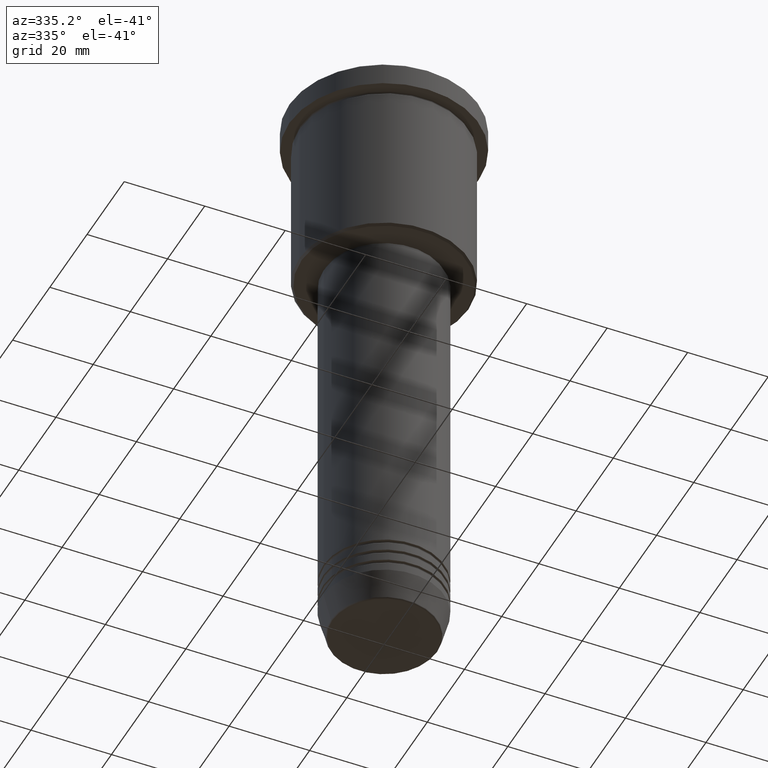
[diagram: clean part render]
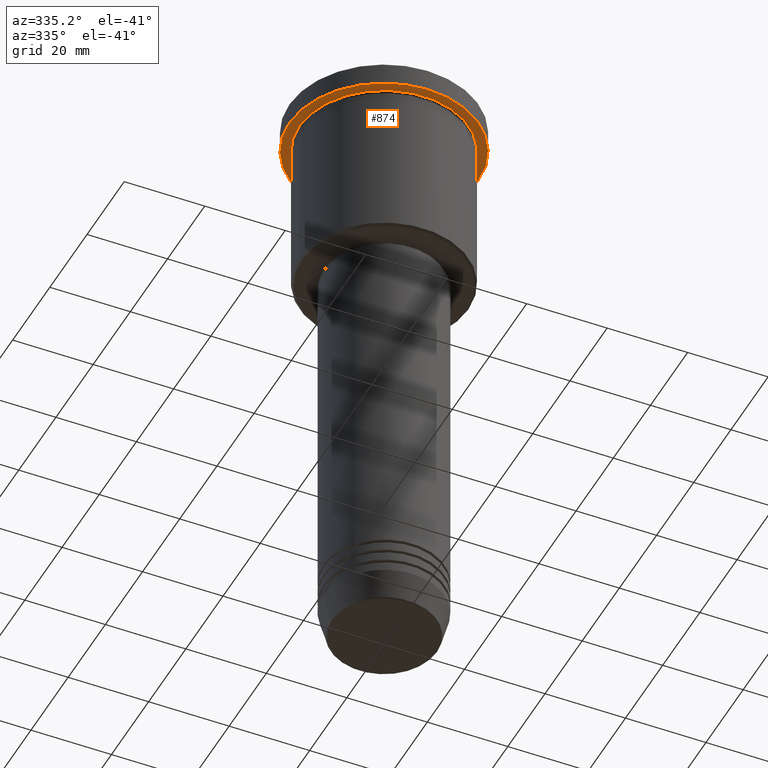
[diagram: same view with one face highlighted and labeled with its STEP entity id]
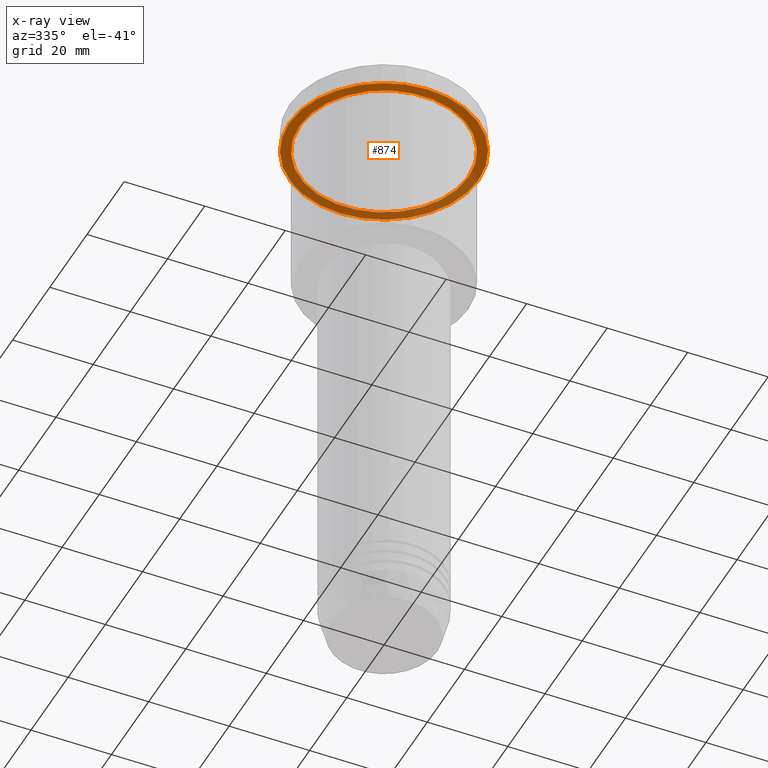
[diagram: x-ray of the same camera — body ghosted, the highlighted face saturated]
A machine part, auxiliary view. The second image highlights one B-rep face of the part: STEP entity #874.
The next image is the same camera in x-ray: the body ghosted, the highlighted face saturated — about 38% of this face is hidden behind the body in this view.
In plain terms, the highlighted planar face has unit normal (0, 0, -1).
Its self-contained STEP definition (entity closure, byte-faithful):
#55 = AXIS2_PLACEMENT_3D ( 'NONE', #423, #1046, #750 ) ;
#77 = CIRCLE ( 'NONE', #103, 21.00000000000000000 ) ;
#103 = AXIS2_PLACEMENT_3D ( 'NONE', #784, #1048, #316 ) ;
#134 = FACE_BOUND ( 'NONE', #826, .T. ) ;
#137 = VERTEX_POINT ( 'NONE', #893 ) ;
#153 = ORIENTED_EDGE ( 'NONE', *, *, #762, .T. ) ;
#183 = CIRCLE ( 'NONE', #198, 23.50000000000000000 ) ;
#198 = AXIS2_PLACEMENT_3D ( 'NONE', #1057, #799, #900 ) ;
#217 = DIRECTION ( 'NONE',  ( -1.000000000000000000, 0.000000000000000000, -0.000000000000000000 ) ) ;
#221 = CIRCLE ( 'NONE', #541, 23.50000000000000000 ) ;
#307 = DIRECTION ( 'NONE',  ( 1.000000000000000000, 0.000000000000000000, 0.000000000000000000 ) ) ;
#316 = DIRECTION ( 'NONE',  ( -1.000000000000000000, 0.000000000000000000, 0.000000000000000000 ) ) ;
#327 = CARTESIAN_POINT ( 'NONE',  ( 0.000000000000000000, 0.000000000000000000, -5.999999999999994671 ) ) ;
#381 = VERTEX_POINT ( 'NONE', #726 ) ;
#423 = CARTESIAN_POINT ( 'NONE',  ( 0.000000000000000000, 0.000000000000000000, -5.999999999999994671 ) ) ;
#481 = ORIENTED_EDGE ( 'NONE', *, *, #1058, .F. ) ;
#541 = AXIS2_PLACEMENT_3D ( 'NONE', #327, #609, #307 ) ;
#542 = ORIENTED_EDGE ( 'NONE', *, *, #842, .F. ) ;
#548 = CARTESIAN_POINT ( 'NONE',  ( -21.00000000000000000, 0.000000000000000000, -5.999999999999994671 ) ) ;
#609 = DIRECTION ( 'NONE',  ( -0.000000000000000000, -0.000000000000000000, 1.000000000000000000 ) ) ;
#638 = CIRCLE ( 'NONE', #55, 21.00000000000000000 ) ;
#702 = ORIENTED_EDGE ( 'NONE', *, *, #827, .T. ) ;
#703 = CARTESIAN_POINT ( 'NONE',  ( 0.000000000000000000, 23.50000000000000000, -5.999999999999994671 ) ) ;
#726 = CARTESIAN_POINT ( 'NONE',  ( 21.00000000000000000, 2.571758278209441661E-15, -5.999999999999994671 ) ) ;
#741 = CARTESIAN_POINT ( 'NONE',  ( -23.50000000000000000, 2.877919977996280320E-15, -5.999999999999994671 ) ) ;
#750 = DIRECTION ( 'NONE',  ( -1.000000000000000000, 0.000000000000000000, 0.000000000000000000 ) ) ;
#762 = EDGE_CURVE ( 'NONE', #1063, #381, #77, .T. ) ;
#784 = CARTESIAN_POINT ( 'NONE',  ( 0.000000000000000000, 0.000000000000000000, -5.999999999999994671 ) ) ;
#799 = DIRECTION ( 'NONE',  ( -0.000000000000000000, -0.000000000000000000, 1.000000000000000000 ) ) ;
#826 = EDGE_LOOP ( 'NONE', ( #153, #702 ) ) ;
#827 = EDGE_CURVE ( 'NONE', #381, #1063, #638, .T. ) ;
#842 = EDGE_CURVE ( 'NONE', #137, #1105, #221, .T. ) ;
#872 = DIRECTION ( 'NONE',  ( 0.000000000000000000, 0.000000000000000000, -1.000000000000000000 ) ) ;
#874 = ADVANCED_FACE ( 'NONE', ( #134, #953 ), #923, .T. ) ;
#893 = CARTESIAN_POINT ( 'NONE',  ( 23.50000000000000000, 0.000000000000000000, -5.999999999999994671 ) ) ;
#900 = DIRECTION ( 'NONE',  ( 1.000000000000000000, 0.000000000000000000, 0.000000000000000000 ) ) ;
#909 = EDGE_LOOP ( 'NONE', ( #542, #481 ) ) ;
#923 = PLANE ( 'NONE',  #1161 ) ;
#953 = FACE_OUTER_BOUND ( 'NONE', #909, .T. ) ;
#1046 = DIRECTION ( 'NONE',  ( -0.000000000000000000, -0.000000000000000000, 1.000000000000000000 ) ) ;
#1048 = DIRECTION ( 'NONE',  ( -0.000000000000000000, -0.000000000000000000, 1.000000000000000000 ) ) ;
#1057 = CARTESIAN_POINT ( 'NONE',  ( 0.000000000000000000, 0.000000000000000000, -5.999999999999994671 ) ) ;
#1058 = EDGE_CURVE ( 'NONE', #1105, #137, #183, .T. ) ;
#1063 = VERTEX_POINT ( 'NONE', #548 ) ;
#1105 = VERTEX_POINT ( 'NONE', #741 ) ;
#1161 = AXIS2_PLACEMENT_3D ( 'NONE', #703, #872, #217 ) ;